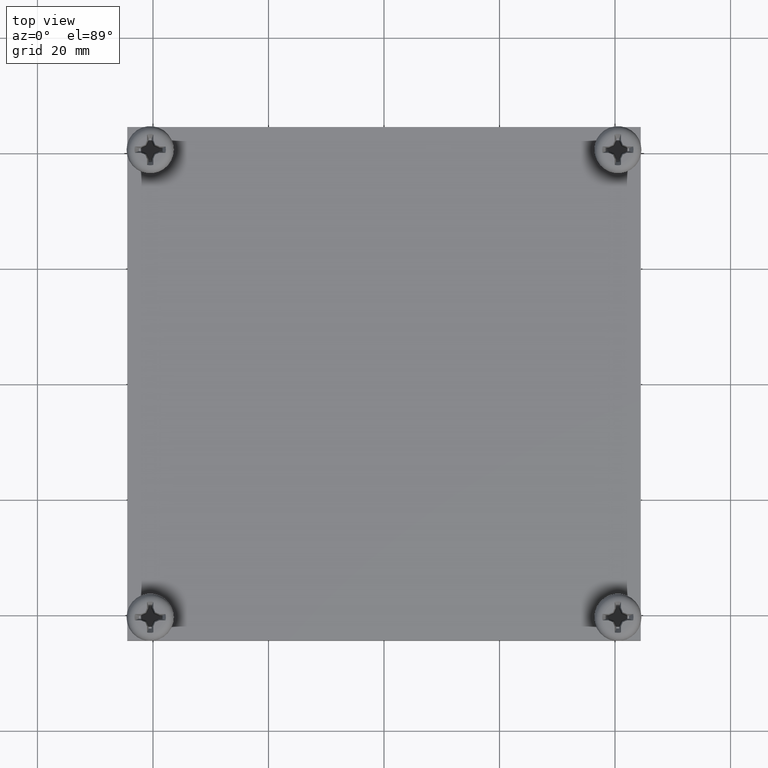
[diagram: clean part render]
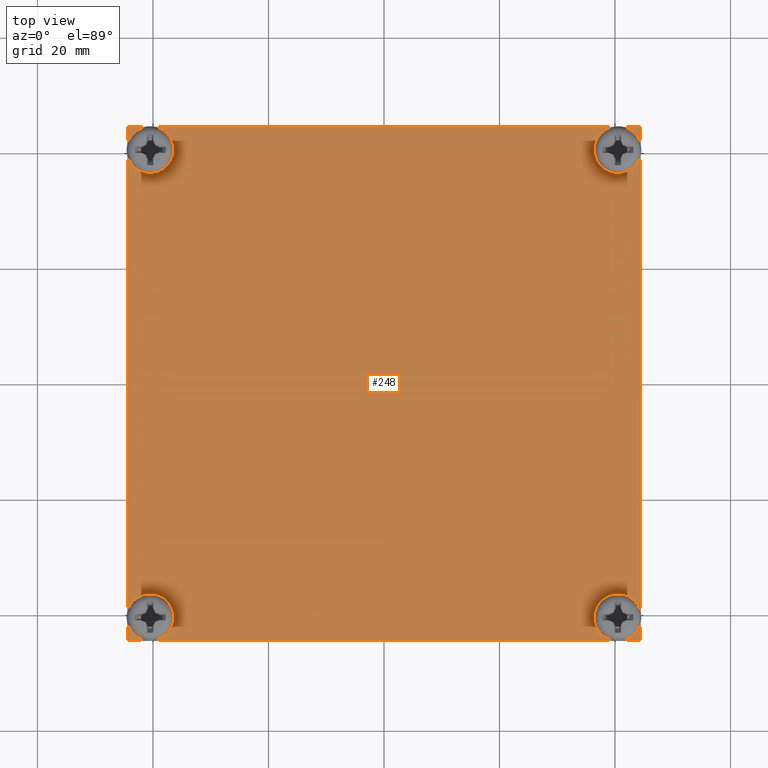
[diagram: same view with one face highlighted and labeled with its STEP entity id]
A machine part, top view. The second image highlights one B-rep face of the part: STEP entity #248.
In plain terms, the highlighted planar face has unit normal (0, 0, 1).
Its self-contained STEP definition (entity closure, byte-faithful):
#1=CARTESIAN_POINT('',(-1.59375E0,1.59375E0,0.E0));
#2=DIRECTION('',(0.E0,0.E0,-1.E0));
#3=DIRECTION('',(1.E0,0.E0,0.E0));
#4=AXIS2_PLACEMENT_3D('',#1,#2,#3);
#6=CARTESIAN_POINT('',(-1.59375E0,1.59375E0,0.E0));
#7=DIRECTION('',(0.E0,0.E0,-1.E0));
#8=DIRECTION('',(-1.E0,0.E0,0.E0));
#9=AXIS2_PLACEMENT_3D('',#6,#7,#8);
#11=CARTESIAN_POINT('',(1.59375E0,1.59375E0,0.E0));
#12=DIRECTION('',(0.E0,0.E0,-1.E0));
#13=DIRECTION('',(1.E0,0.E0,0.E0));
#14=AXIS2_PLACEMENT_3D('',#11,#12,#13);
#16=CARTESIAN_POINT('',(1.59375E0,1.59375E0,0.E0));
#17=DIRECTION('',(0.E0,0.E0,-1.E0));
#18=DIRECTION('',(-1.E0,0.E0,0.E0));
#19=AXIS2_PLACEMENT_3D('',#16,#17,#18);
#21=CARTESIAN_POINT('',(-1.59375E0,-1.59375E0,0.E0));
#22=DIRECTION('',(0.E0,0.E0,-1.E0));
#23=DIRECTION('',(1.E0,0.E0,0.E0));
#24=AXIS2_PLACEMENT_3D('',#21,#22,#23);
#26=CARTESIAN_POINT('',(-1.59375E0,-1.59375E0,0.E0));
#27=DIRECTION('',(0.E0,0.E0,-1.E0));
#28=DIRECTION('',(-1.E0,0.E0,0.E0));
#29=AXIS2_PLACEMENT_3D('',#26,#27,#28);
#31=CARTESIAN_POINT('',(1.59375E0,-1.59375E0,0.E0));
#32=DIRECTION('',(0.E0,0.E0,-1.E0));
#33=DIRECTION('',(1.E0,0.E0,0.E0));
#34=AXIS2_PLACEMENT_3D('',#31,#32,#33);
#36=CARTESIAN_POINT('',(1.59375E0,-1.59375E0,0.E0));
#37=DIRECTION('',(0.E0,0.E0,-1.E0));
#38=DIRECTION('',(-1.E0,0.E0,0.E0));
#39=AXIS2_PLACEMENT_3D('',#36,#37,#38);
#41=DIRECTION('',(1.E0,0.E0,0.E0));
#42=VECTOR('',#41,3.5E0);
#43=CARTESIAN_POINT('',(-1.75E0,-1.75E0,0.E0));
#44=LINE('',#43,#42);
#45=DIRECTION('',(0.E0,-1.E0,0.E0));
#46=VECTOR('',#45,3.5E0);
#47=CARTESIAN_POINT('',(-1.75E0,1.75E0,0.E0));
#48=LINE('',#47,#46);
#49=DIRECTION('',(-1.E0,0.E0,0.E0));
#50=VECTOR('',#49,3.5E0);
#51=CARTESIAN_POINT('',(1.75E0,1.75E0,0.E0));
#52=LINE('',#51,#50);
#53=DIRECTION('',(0.E0,1.E0,0.E0));
#54=VECTOR('',#53,3.5E0);
#55=CARTESIAN_POINT('',(1.75E0,-1.75E0,0.E0));
#56=LINE('',#55,#54);
#161=CARTESIAN_POINT('',(-1.50025E0,1.59375E0,0.E0));
#162=CARTESIAN_POINT('',(-1.68725E0,1.59375E0,0.E0));
#163=VERTEX_POINT('',#161);
#164=VERTEX_POINT('',#162);
#165=CARTESIAN_POINT('',(1.68725E0,1.59375E0,0.E0));
#166=CARTESIAN_POINT('',(1.50025E0,1.59375E0,0.E0));
#167=VERTEX_POINT('',#165);
#168=VERTEX_POINT('',#166);
#169=CARTESIAN_POINT('',(-1.50025E0,-1.59375E0,0.E0));
#170=CARTESIAN_POINT('',(-1.68725E0,-1.59375E0,0.E0));
#171=VERTEX_POINT('',#169);
#172=VERTEX_POINT('',#170);
#173=CARTESIAN_POINT('',(1.68725E0,-1.59375E0,0.E0));
#174=CARTESIAN_POINT('',(1.50025E0,-1.59375E0,0.E0));
#175=VERTEX_POINT('',#173);
#176=VERTEX_POINT('',#174);
#177=CARTESIAN_POINT('',(-1.75E0,-1.75E0,0.E0));
#178=CARTESIAN_POINT('',(1.75E0,-1.75E0,0.E0));
#179=VERTEX_POINT('',#177);
#180=VERTEX_POINT('',#178);
#181=CARTESIAN_POINT('',(1.75E0,1.75E0,0.E0));
#182=VERTEX_POINT('',#181);
#183=CARTESIAN_POINT('',(-1.75E0,1.75E0,0.E0));
#184=VERTEX_POINT('',#183);
#209=CARTESIAN_POINT('',(0.E0,0.E0,0.E0));
#210=DIRECTION('',(0.E0,0.E0,1.E0));
#211=DIRECTION('',(1.E0,0.E0,0.E0));
#212=AXIS2_PLACEMENT_3D('',#209,#210,#211);
#213=PLANE('',#212);
#215=ORIENTED_EDGE('',*,*,#214,.F.);
#217=ORIENTED_EDGE('',*,*,#216,.F.);
#219=ORIENTED_EDGE('',*,*,#218,.F.);
#221=ORIENTED_EDGE('',*,*,#220,.F.);
#222=EDGE_LOOP('',(#215,#217,#219,#221));
#223=FACE_OUTER_BOUND('',#222,.F.);
#225=ORIENTED_EDGE('',*,*,#224,.F.);
#227=ORIENTED_EDGE('',*,*,#226,.F.);
#228=EDGE_LOOP('',(#225,#227));
#229=FACE_BOUND('',#228,.F.);
#231=ORIENTED_EDGE('',*,*,#230,.F.);
#233=ORIENTED_EDGE('',*,*,#232,.F.);
#234=EDGE_LOOP('',(#231,#233));
#235=FACE_BOUND('',#234,.F.);
#237=ORIENTED_EDGE('',*,*,#236,.F.);
#239=ORIENTED_EDGE('',*,*,#238,.F.);
#240=EDGE_LOOP('',(#237,#239));
#241=FACE_BOUND('',#240,.F.);
#243=ORIENTED_EDGE('',*,*,#242,.F.);
#245=ORIENTED_EDGE('',*,*,#244,.F.);
#246=EDGE_LOOP('',(#243,#245));
#247=FACE_BOUND('',#246,.F.);
#248=ADVANCED_FACE('',(#223,#229,#235,#241,#247),#213,.T.);
#5=CIRCLE('',#4,9.35E-2);
#10=CIRCLE('',#9,9.35E-2);
#15=CIRCLE('',#14,9.35E-2);
#20=CIRCLE('',#19,9.35E-2);
#25=CIRCLE('',#24,9.35E-2);
#30=CIRCLE('',#29,9.35E-2);
#35=CIRCLE('',#34,9.35E-2);
#40=CIRCLE('',#39,9.35E-2);
#214=EDGE_CURVE('',#179,#180,#44,.T.);
#216=EDGE_CURVE('',#184,#179,#48,.T.);
#218=EDGE_CURVE('',#182,#184,#52,.T.);
#220=EDGE_CURVE('',#180,#182,#56,.T.);
#224=EDGE_CURVE('',#167,#168,#15,.T.);
#226=EDGE_CURVE('',#168,#167,#20,.T.);
#230=EDGE_CURVE('',#171,#172,#25,.T.);
#232=EDGE_CURVE('',#172,#171,#30,.T.);
#236=EDGE_CURVE('',#175,#176,#35,.T.);
#238=EDGE_CURVE('',#176,#175,#40,.T.);
#242=EDGE_CURVE('',#163,#164,#5,.T.);
#244=EDGE_CURVE('',#164,#163,#10,.T.);